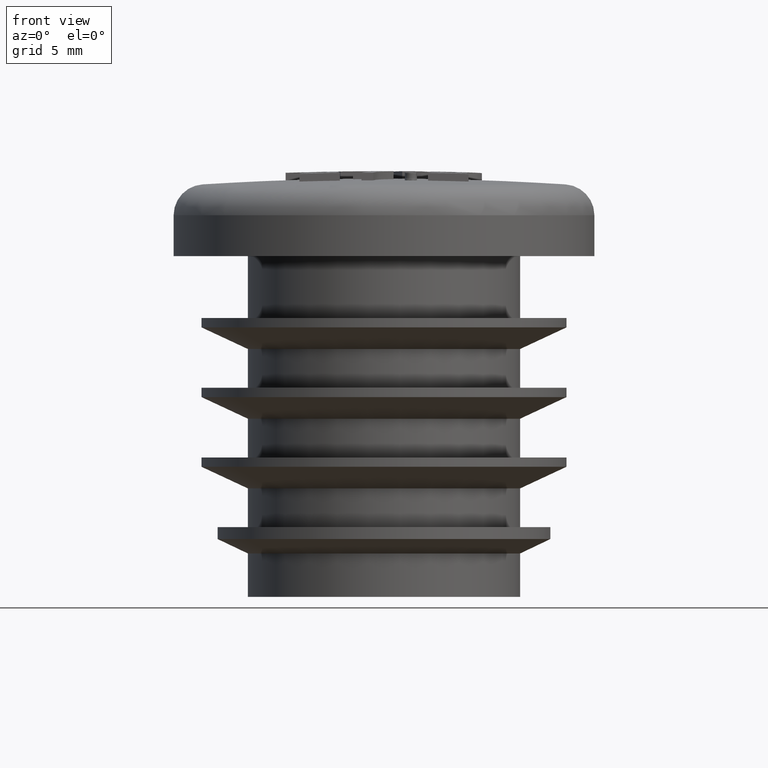
[diagram: clean part render]
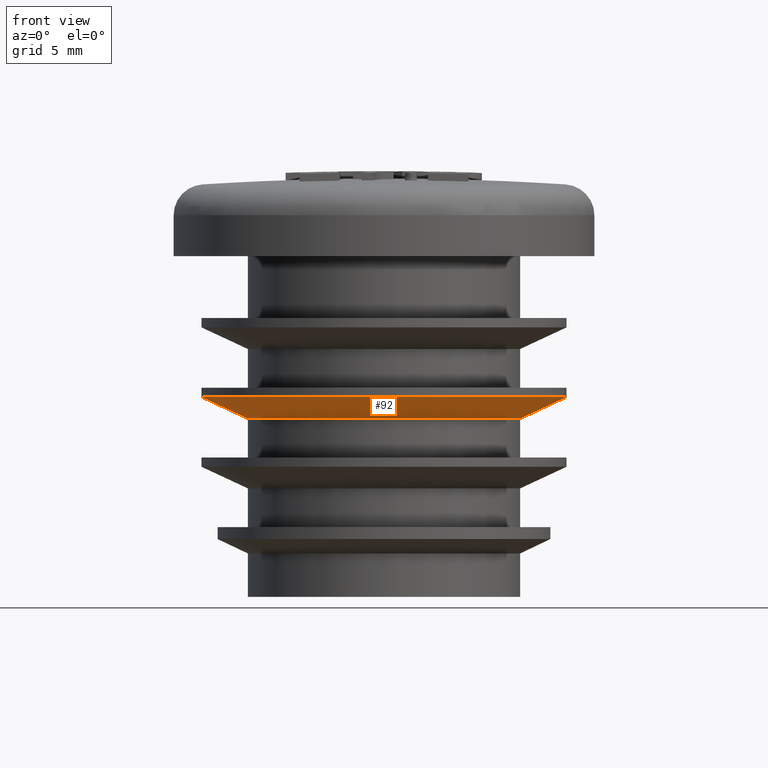
[diagram: same view with one face highlighted and labeled with its STEP entity id]
A machine part, front view. The second image highlights one B-rep face of the part: STEP entity #92.
In plain terms, the highlighted conical surface has half-angle 65 deg.
Its self-contained STEP definition (entity closure, byte-faithful):
#92 = ADVANCED_FACE( '', ( #212, #213 ), #214, .T. );
#212 = FACE_BOUND( '', #466, .T. );
#213 = FACE_OUTER_BOUND( '', #467, .T. );
#214 = CONICAL_SURFACE( '', #468, 11.8000000000000, 1.13446401379632 );
#466 = EDGE_LOOP( '', ( #933 ) );
#467 = EDGE_LOOP( '', ( #934 ) );
#468 = AXIS2_PLACEMENT_3D( '', #935, #936, #937 );
#933 = ORIENTED_EDGE( '', *, *, #1479, .F. );
#934 = ORIENTED_EDGE( '', *, *, #1478, .T. );
#935 = CARTESIAN_POINT( '', ( 0.000000000000000, -5.57261837604852E-016, 12.8989229744650 ) );
#936 = DIRECTION( '', ( 0.000000000000000, 6.12303176911189E-017, 1.00000000000000 ) );
#937 = DIRECTION( '', ( 0.000000000000000, -1.00000000000000, 6.12303176911189E-017 ) );
#1478 = EDGE_CURVE( '', #1708, #1708, #1709, .T. );
#1479 = EDGE_CURVE( '', #1710, #1710, #1711, .T. );
#1708 = VERTEX_POINT( '', #2386 );
#1709 = CIRCLE( '', #2387, 11.8000000000000 );
#1710 = VERTEX_POINT( '', #2388 );
#1711 = CIRCLE( '', #2389, 8.80000000000000 );
#2386 = CARTESIAN_POINT( '', ( 0.000000000000000, 11.8000000000000, 12.8989229744650 ) );
#2387 = AXIS2_PLACEMENT_3D( '', #2967, #2968, #2969 );
#2388 = CARTESIAN_POINT( '', ( 0.000000000000000, 8.80000000000000, 11.5000000000000 ) );
#2389 = AXIS2_PLACEMENT_3D( '', #2970, #2971, #2972 );
#2967 = CARTESIAN_POINT( '', ( 0.000000000000000, -5.57261837604852E-016, 12.8989229744650 ) );
#2968 = DIRECTION( '', ( 0.000000000000000, -6.12303176911189E-017, -1.00000000000000 ) );
#2969 = DIRECTION( '', ( 0.000000000000000, 1.00000000000000, -6.12303176911189E-017 ) );
#2970 = CARTESIAN_POINT( '', ( 0.000000000000000, -6.42918335756747E-016, 11.5000000000000 ) );
#2971 = DIRECTION( '', ( 0.000000000000000, -6.12303176911189E-017, -1.00000000000000 ) );
#2972 = DIRECTION( '', ( 0.000000000000000, 1.00000000000000, -6.12303176911189E-017 ) );